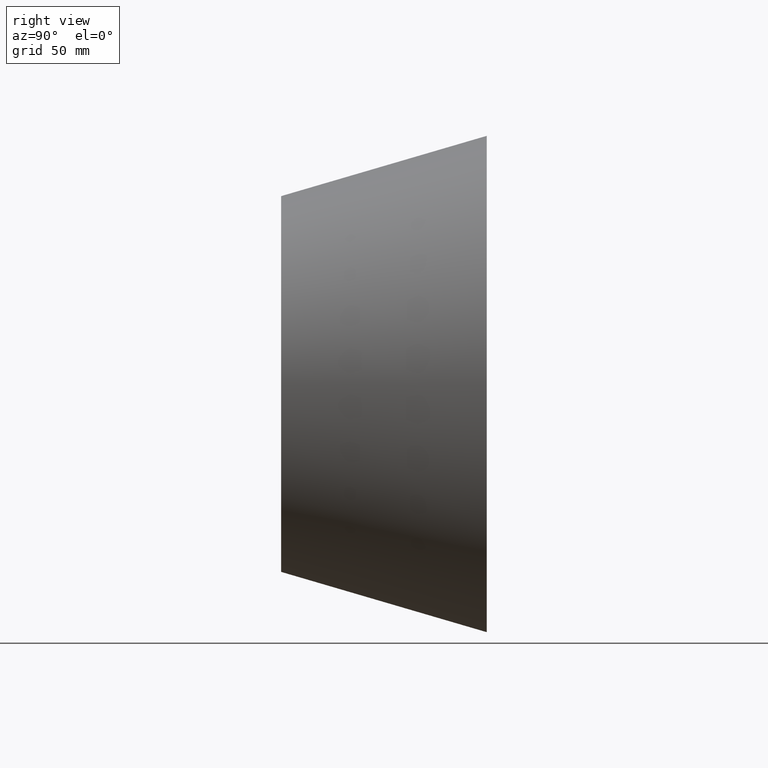
[diagram: clean part render]
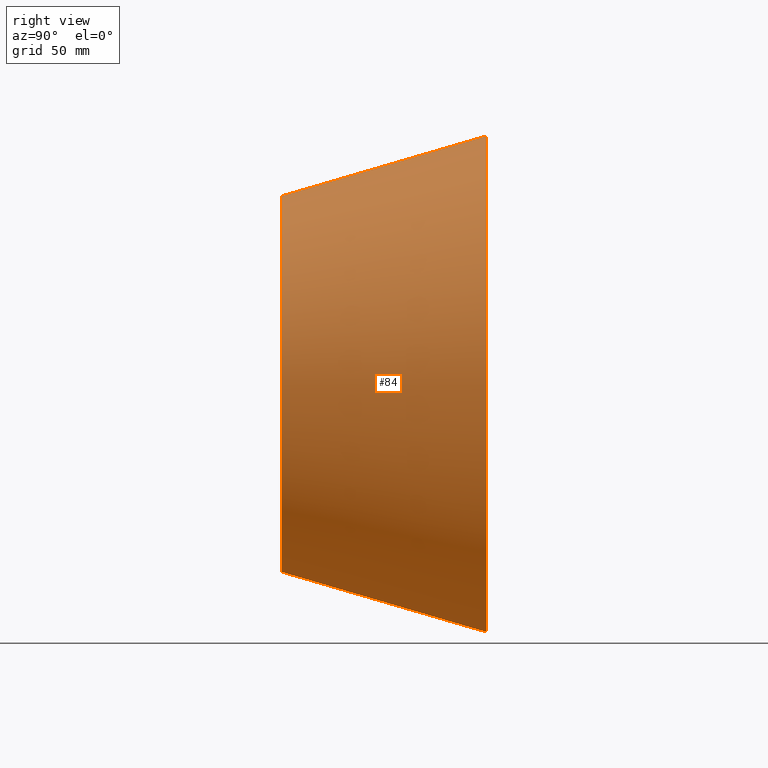
[diagram: same view with one face highlighted and labeled with its STEP entity id]
A machine part, right view. The second image highlights one B-rep face of the part: STEP entity #84.
In plain terms, the highlighted conical surface has half-angle 16.336 deg.
Its self-contained STEP definition (entity closure, byte-faithful):
#5 = FACE_OUTER_BOUND ( 'NONE', #198, .T. ) ;
#25 = ORIENTED_EDGE ( 'NONE', *, *, #106, .T. ) ;
#41 = EDGE_CURVE ( 'NONE', #244, #154, #311, .T. ) ;
#43 = DIRECTION ( 'NONE',  ( 0.0000000000000000000, 1.000000000000000000, 0.0000000000000000000 ) ) ;
#44 = DIRECTION ( 'NONE',  ( -0.0000000000000000000, -1.000000000000000000, -0.0000000000000000000 ) ) ;
#47 = ORIENTED_EDGE ( 'NONE', *, *, #251, .F. ) ;
#68 = DIRECTION ( 'NONE',  ( -0.0000000000000000000, -1.000000000000000000, -0.0000000000000000000 ) ) ;
#69 = CARTESIAN_POINT ( 'NONE',  ( 1.882894453689055400E-014, -3.469446951953614200E-015, -132.5000000000000000 ) ) ;
#74 = CARTESIAN_POINT ( 'NONE',  ( 0.0000000000000000000, -3.469446951953614200E-015, 132.5000000000000000 ) ) ;
#75 = DIRECTION ( 'NONE',  ( 0.0000000000000000000, 0.9596285438852135700, 0.2812704352767004800 ) ) ;
#79 = VECTOR ( 'NONE', #75, 1000.000000000000100 ) ;
#84 = ADVANCED_FACE ( 'NONE', ( #5 ), #264, .T. ) ;
#106 = EDGE_CURVE ( 'NONE', #154, #247, #152, .T. ) ;
#113 = EDGE_CURVE ( 'NONE', #244, #274, #217, .T. ) ;
#124 = ORIENTED_EDGE ( 'NONE', *, *, #113, .F. ) ;
#147 = CARTESIAN_POINT ( 'NONE',  ( 0.0000000000000000000, 144.9999999999999400, 0.0000000000000000000 ) ) ;
#152 = CIRCLE ( 'NONE', #260, 175.0000000000000000 ) ;
#154 = VERTEX_POINT ( 'NONE', #292 ) ;
#175 = CARTESIAN_POINT ( 'NONE',  ( 0.0000000000000000000, 144.9999999999999400, 175.0000000000000000 ) ) ;
#181 = AXIS2_PLACEMENT_3D ( 'NONE', #294, #43, #234 ) ;
#182 = CARTESIAN_POINT ( 'NONE',  ( 0.0000000000000000000, -3.469446951953614200E-015, 0.0000000000000000000 ) ) ;
#190 = DIRECTION ( 'NONE',  ( 0.0000000000000000000, 0.0000000000000000000, -1.000000000000000000 ) ) ;
#198 = EDGE_LOOP ( 'NONE', ( #124, #323, #25, #47 ) ) ;
#210 = CARTESIAN_POINT ( 'NONE',  ( 2.143131898507867900E-014, 144.9999999999999400, -175.0000000000000000 ) ) ;
#217 = CIRCLE ( 'NONE', #288, 132.5000000000000000 ) ;
#223 = DIRECTION ( 'NONE',  ( 0.0000000000000000000, 0.0000000000000000000, -1.000000000000000000 ) ) ;
#234 = DIRECTION ( 'NONE',  ( 0.0000000000000000000, 0.0000000000000000000, 1.000000000000000000 ) ) ;
#242 = DIRECTION ( 'NONE',  ( 3.444569382563940100E-017, 0.9596285438852135700, -0.2812704352767004800 ) ) ;
#244 = VERTEX_POINT ( 'NONE', #69 ) ;
#247 = VERTEX_POINT ( 'NONE', #252 ) ;
#251 = EDGE_CURVE ( 'NONE', #274, #247, #348, .T. ) ;
#252 = CARTESIAN_POINT ( 'NONE',  ( 2.143131898507863200E-014, 144.9999999999999400, 174.9999999999996000 ) ) ;
#260 = AXIS2_PLACEMENT_3D ( 'NONE', #147, #68, #223 ) ;
#264 = CONICAL_SURFACE ( 'NONE', #181, 175.0000000000000000, 0.2851177351725961400 ) ;
#274 = VERTEX_POINT ( 'NONE', #74 ) ;
#288 = AXIS2_PLACEMENT_3D ( 'NONE', #182, #44, #190 ) ;
#292 = CARTESIAN_POINT ( 'NONE',  ( 0.0000000000000000000, 144.9999999999999400, -174.9999999999996000 ) ) ;
#294 = CARTESIAN_POINT ( 'NONE',  ( 0.0000000000000000000, 144.9999999999999400, 0.0000000000000000000 ) ) ;
#301 = VECTOR ( 'NONE', #242, 1000.000000000000100 ) ;
#311 = LINE ( 'NONE', #210, #301 ) ;
#323 = ORIENTED_EDGE ( 'NONE', *, *, #41, .T. ) ;
#348 = LINE ( 'NONE', #175, #79 ) ;